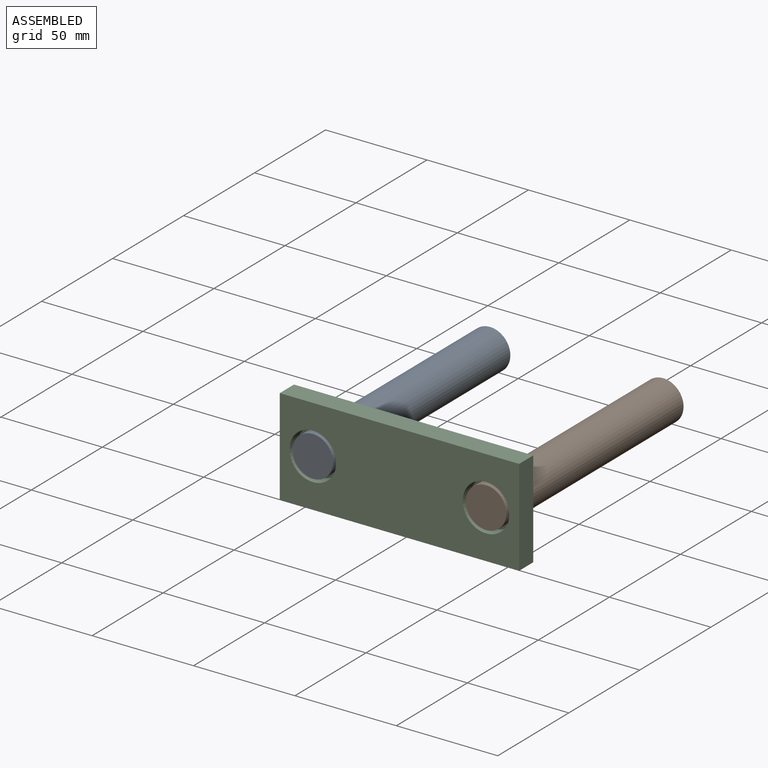
[diagram: assembled view]
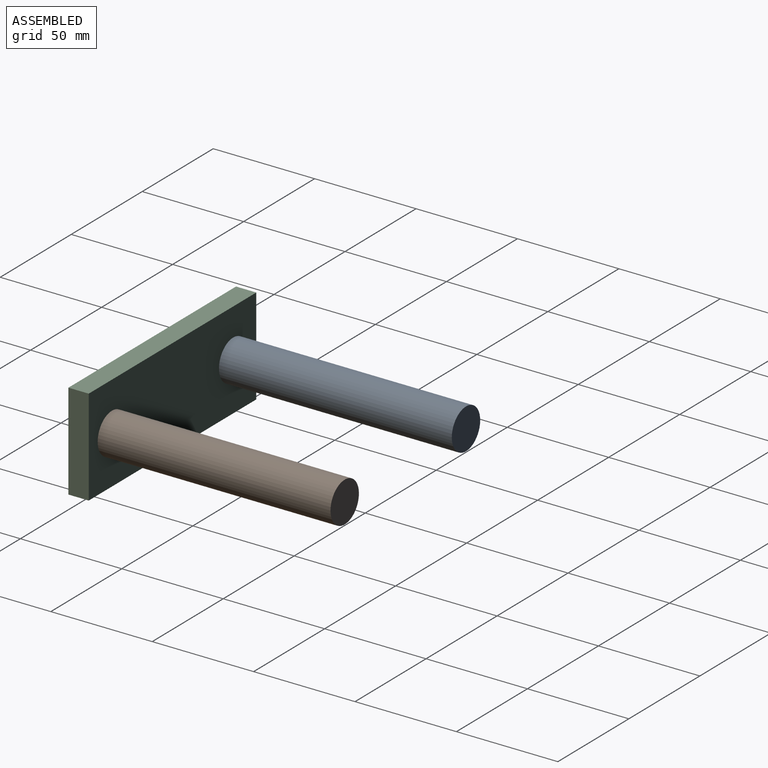
[diagram: assembled view, second angle]
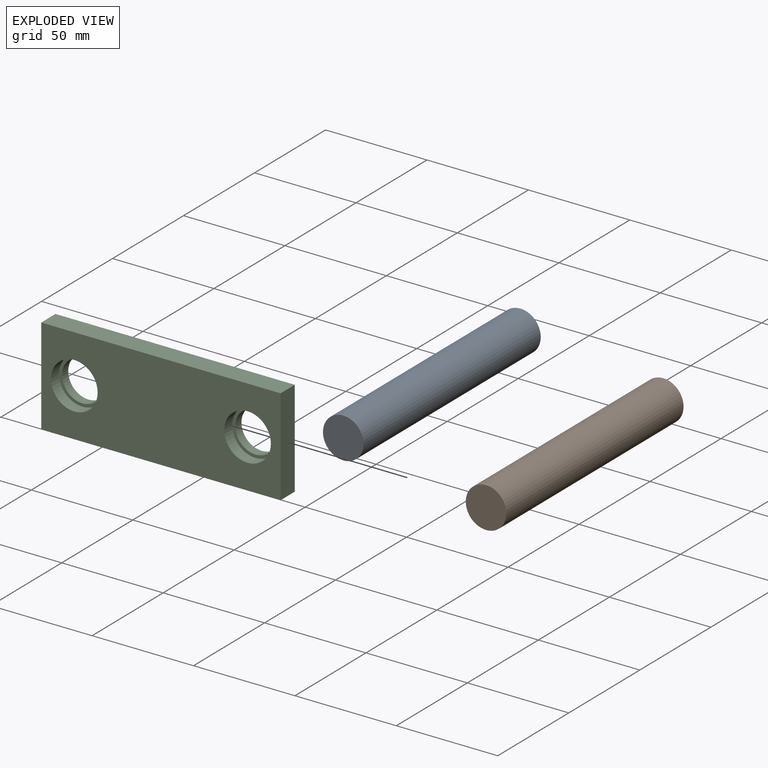
[diagram: exploded view]
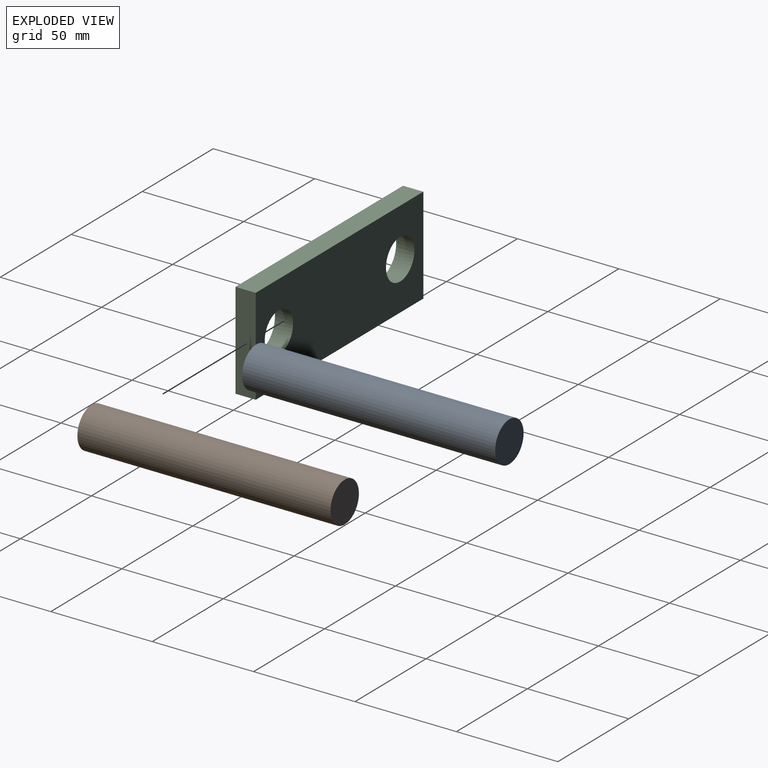
[diagram: exploded view, second angle]
ASSEMBLY  parts=3 mates=4
PART A: 3 faces, bbox 20x124.8x20 mm
  f0: cylinder r=10mm len=124.8mm, axis (0,-1,0), area 7841.4mm2, adj f1,f2
  f1: plane 20x20mm, normal (0,1,0), area 314.2mm2, adj f0
  f2: plane 20x20mm, normal (0,-1,0), area 314.2mm2, adj f0
PART B: same geometry as A
PART C: 12 faces, bbox 118x10x47.6 mm
  f0: plane 118x47.63mm, normal (0,1,0), area 4992mm2, adj f2,f3,f4,f5,f10,f11
  f1: plane 118x47.63mm, normal (0,-1,0), area 4789.4mm2, adj f2,f3,f4,f5,f6,f8
  f2: plane 47.63x10mm, normal (1,0,0), area 476.3mm2, adj f0,f1,f3,f5
  f3: plane 118x10mm, normal (0,0,1), area 1180mm2, adj f0,f1,f2,f4
  f4: plane 47.63x10mm, normal (-1,0,0), area 476.3mm2, adj f0,f1,f3,f5
  f5: plane 118x10mm, normal (0,0,-1), area 1180mm2, adj f0,f1,f2,f4
  f6: cylinder r=11.5mm len=23mm, axis (0,-1,0), area 408.2mm2, adj f1,f7
  f7: plane 23x23mm, normal (0,-1,0), area 101.3mm2, adj f6,f11
  f8: cylinder r=11.5mm len=23mm, axis (0,-1,0), area 408.2mm2, adj f1,f9
  f9: plane 23x23mm, normal (0,-1,0), area 101.3mm2, adj f8,f10
  f10: cylinder r=10mm len=20mm, axis (0,-1,0), area 273.3mm2, adj f0,f9
  f11: cylinder r=10mm len=20mm, axis (0,-1,0), area 273.3mm2, adj f0,f7
PLACE A t=(-42.7,-5,23.82)mm
PLACE B t=(42.7,-5,23.82)mm
PLACE C t=(0,-5,23.82)mm
MATE cylindrical B.f0 <-> C.f11  axis (0,-1,0) through (42.7,57.4,23.82)mm
MATE fastened A.f0 <-> C.f8  axis (0,-1,0) through (-42.7,-5,23.82)mm
MATE cylindrical A.f0 <-> C.f10  axis (0,-1,0) through (-42.7,57.4,23.82)mm
MATE fastened B.f0 <-> C.f6  axis (0,-1,0) through (42.7,-5,23.82)mm
